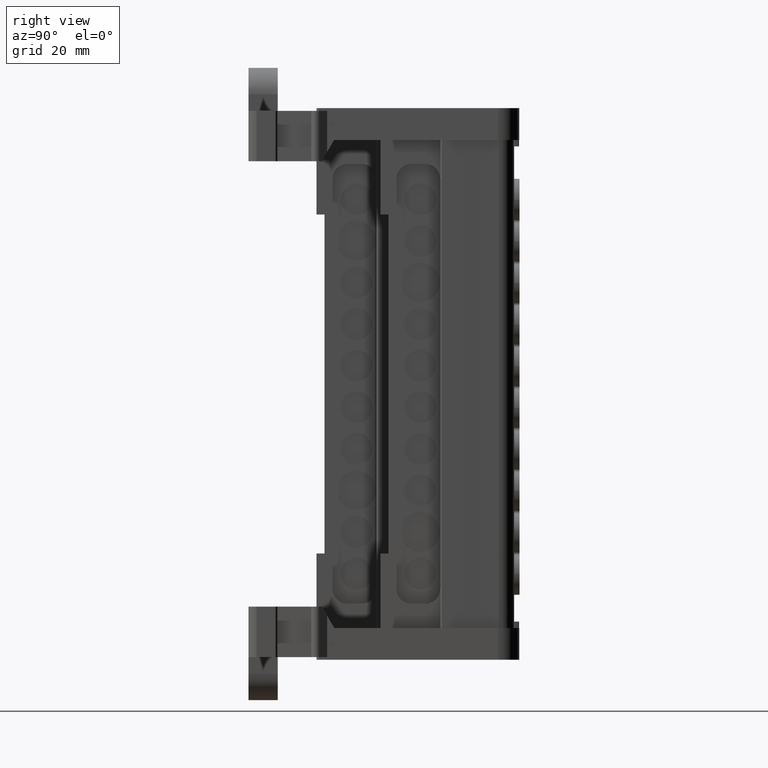
[diagram: clean part render]
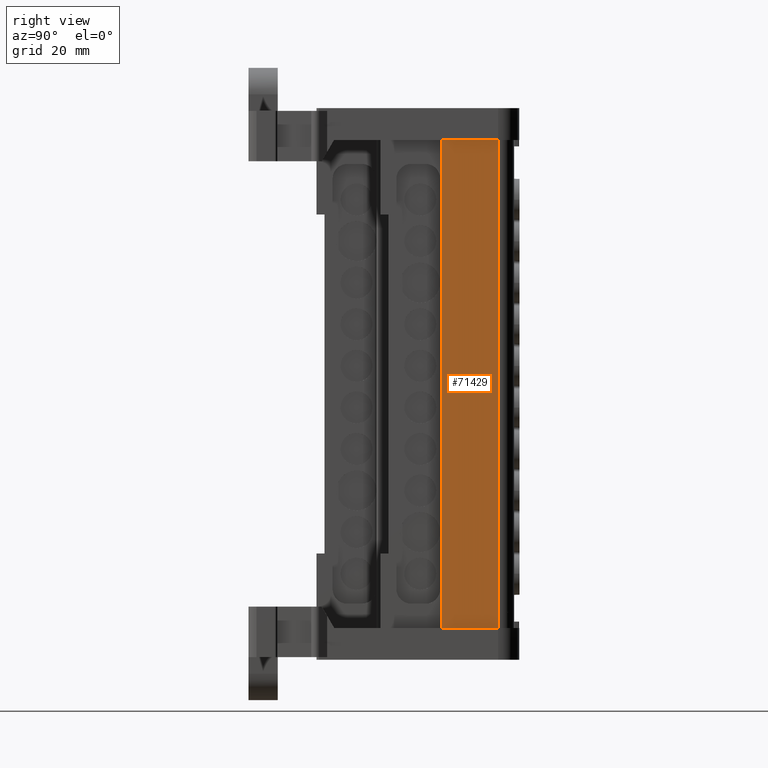
[diagram: same view with one face highlighted and labeled with its STEP entity id]
A machine part, right view. The second image highlights one B-rep face of the part: STEP entity #71429.
In plain terms, the highlighted planar face has unit normal (-0.9998, -0.0175, 0).
Its self-contained STEP definition (entity closure, byte-faithful):
#6132 = VERTEX_POINT ( 'NONE', #49310 ) ;
#6136 = VERTEX_POINT ( 'NONE', #49320 ) ;
#6197 = VERTEX_POINT ( 'NONE', #49365 ) ;
#6221 = VERTEX_POINT ( 'NONE', #49398 ) ;
#22523 = LINE ( 'NONE', #22560, #25436 ) ;
#22557 = DIRECTION ( 'NONE',  ( 0.01745240643723688900, -0.9998476951563919400, 6.549614861095856600E-015 ) ) ;
#22560 = CARTESIAN_POINT ( 'NONE',  ( -27.35670888276768100, 45.56904048598446600, 55.46945965623810800 ) ) ;
#22859 = LINE ( 'NONE', #22898, #25447 ) ;
#22885 = DIRECTION ( 'NONE',  ( 5.326802691273078200E-013, 9.297968683586594100E-015, 1.000000000000000000 ) ) ;
#22898 = CARTESIAN_POINT ( 'NONE',  ( -27.17181190917175500, 34.97629996017570900, -37.12593807024779100 ) ) ;
#23072 = DIRECTION ( 'NONE',  ( -5.326802691273078200E-013, -9.297968683586594100E-015, -1.000000000000000000 ) ) ;
#23075 = CARTESIAN_POINT ( 'NONE',  ( -27.35670888281727600, 45.56904048598359900, -37.12593807024779100 ) ) ;
#23085 = CARTESIAN_POINT ( 'NONE',  ( -27.35670888281651300, 45.56904048598314500, -36.09641155510716000 ) ) ;
#23086 = LINE ( 'NONE', #23075, #25486 ) ;
#23114 = CARTESIAN_POINT ( 'NONE',  ( -27.17181190917112600, 34.97629996017570900, -36.09641155510711000 ) ) ;
#24683 = EDGE_LOOP ( 'NONE', ( #82965, #82945, #82948, #83006 ) ) ;
#25436 = VECTOR ( 'NONE', #22557, 1000.000000000000100 ) ;
#25447 = VECTOR ( 'NONE', #22885, 1000.000000000000000 ) ;
#25486 = VECTOR ( 'NONE', #23072, 1000.000000000000000 ) ;
#36783 = B_SPLINE_CURVE_WITH_KNOTS ( 'NONE', 1,
 ( #23114, #23085 ),
 .UNSPECIFIED., .F., .F.,
 ( 2, 2 ),
 ( 0.0000000000000000000, 1.000000000000000000 ),
 .UNSPECIFIED. ) ;
#49310 = CARTESIAN_POINT ( 'NONE',  ( -27.35670888276774800, 45.56904048598446600, 55.46945965623812900 ) ) ;
#49320 = CARTESIAN_POINT ( 'NONE',  ( -27.17181190912239300, 34.97629996017671800, 55.46945965623818600 ) ) ;
#49365 = CARTESIAN_POINT ( 'NONE',  ( -27.17181190917112600, 34.97629996017570900, -36.09641155510711000 ) ) ;
#49398 = CARTESIAN_POINT ( 'NONE',  ( -27.35670888281651300, 45.56904048598314500, -36.09641155510716000 ) ) ;
#53955 = EDGE_CURVE ( 'NONE', #6132, #6136, #22523, .T. ) ;
#54010 = EDGE_CURVE ( 'NONE', #6197, #6136, #22859, .T. ) ;
#54064 = EDGE_CURVE ( 'NONE', #6197, #6221, #36783, .T. ) ;
#54071 = EDGE_CURVE ( 'NONE', #6132, #6221, #23086, .T. ) ;
#59861 = AXIS2_PLACEMENT_3D ( 'NONE', #76746, #76804, #76785 ) ;
#71429 = ADVANCED_FACE ( 'NONE', ( #76735 ), #76802, .F. ) ;
#76735 = FACE_OUTER_BOUND ( 'NONE', #24683, .T. ) ;
#76746 = CARTESIAN_POINT ( 'NONE',  ( -27.17181190917180100, 34.97629996017818900, -37.12593807024779100 ) ) ;
#76785 = DIRECTION ( 'NONE',  ( 0.01745240643726290300, -0.9998476951563916000, 0.0000000000000000000 ) ) ;
#76802 = PLANE ( 'NONE',  #59861 ) ;
#76804 = DIRECTION ( 'NONE',  ( -0.9998476951563916000, -0.01745240643726290300, 5.327614112707320100E-013 ) ) ;
#82945 = ORIENTED_EDGE ( 'NONE', *, *, #53955, .T. ) ;
#82948 = ORIENTED_EDGE ( 'NONE', *, *, #54010, .F. ) ;
#82965 = ORIENTED_EDGE ( 'NONE', *, *, #54071, .F. ) ;
#83006 = ORIENTED_EDGE ( 'NONE', *, *, #54064, .T. ) ;